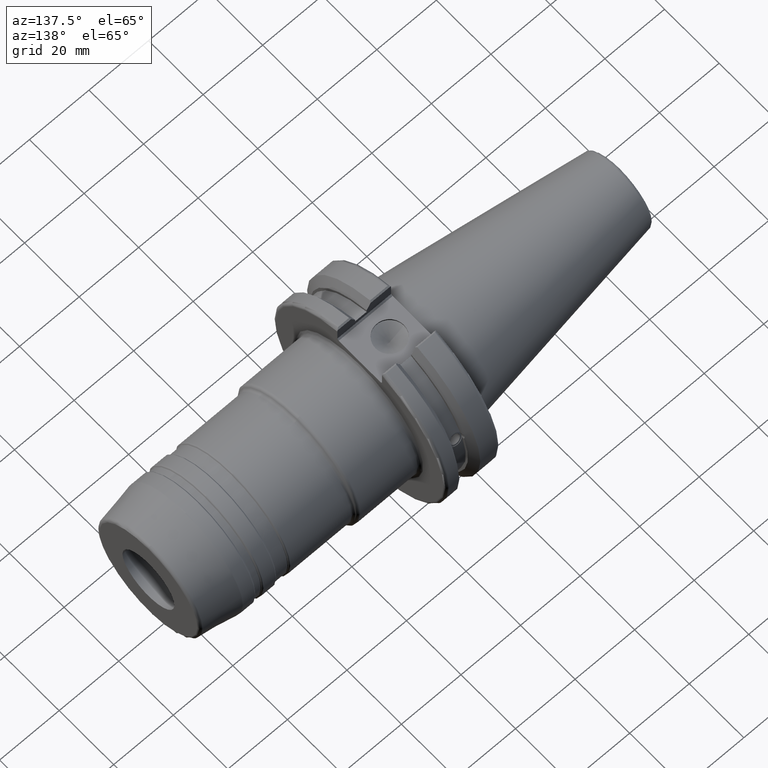
[diagram: clean part render]
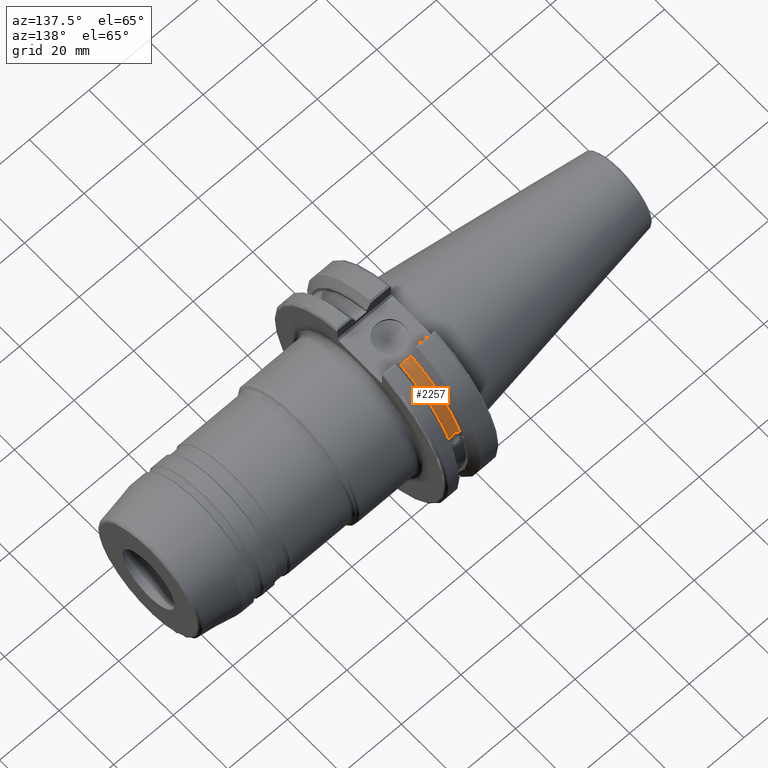
[diagram: same view with one face highlighted and labeled with its STEP entity id]
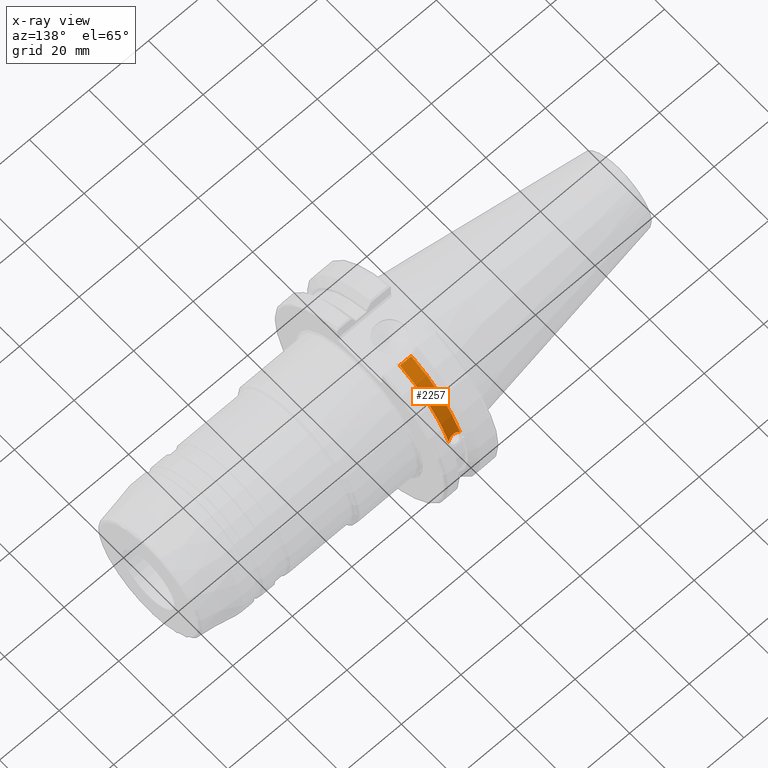
[diagram: x-ray of the same camera — body ghosted, the highlighted face saturated]
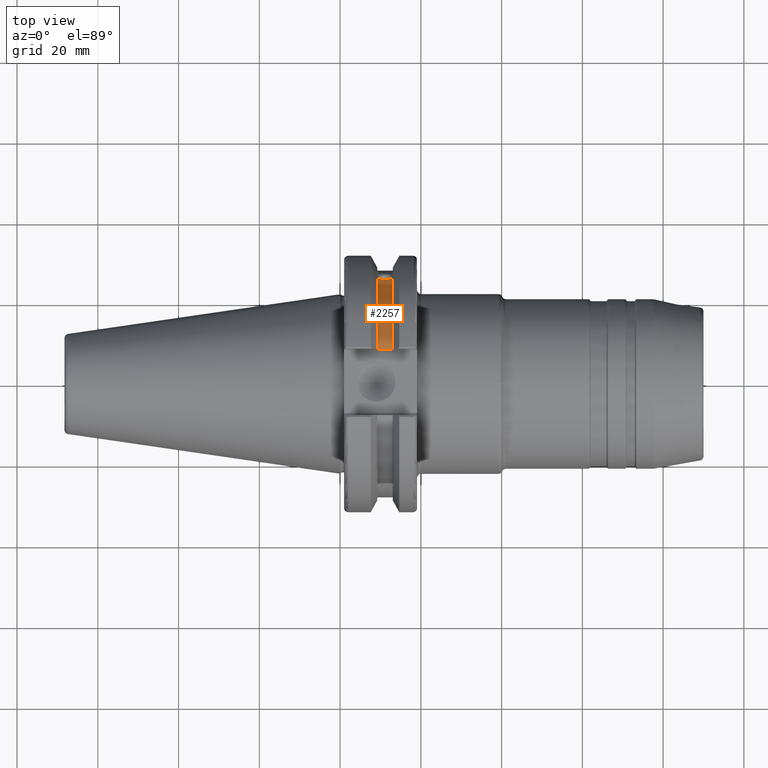
[diagram: same view with one face highlighted and labeled with its STEP entity id]
A machine part, auxiliary view. The second image highlights one B-rep face of the part: STEP entity #2257.
The next image is the same camera in x-ray: the body ghosted, the highlighted face saturated — about 0% of this face is hidden behind the body in this view.
A second angle (top view) of the same face is appended — the face is thin or edge-on in the first view.
In plain terms, the highlighted cylindrical surface (partial cylindrical patch) has radius 28.15 mm, axis along (1, 0, 0).
Its self-contained STEP definition (entity closure, byte-faithful):
#158=B_SPLINE_CURVE_WITH_KNOTS('',3,(#3946,#3947,#3948,#3949,#3950,#3951,
#3952,#3953,#3954,#3955,#3956,#3957,#3958,#3959,#3960),.UNSPECIFIED.,.F.,
 .F.,(4,2,2,3,2,2,4),(-0.231446873660084,-0.158271583089134,-0.079135791544567,
0.,0.079135791544567,0.158271583089134,0.231446873660466),.UNSPECIFIED.);
#271=FACE_OUTER_BOUND('',#393,.T.);
#393=EDGE_LOOP('',(#2051,#2052,#2053,#2054));
#503=LINE('',#4322,#608);
#608=VECTOR('',#3216,10.);
#785=CIRCLE('',#2569,28.15);
#786=CIRCLE('',#2571,28.15);
#955=VERTEX_POINT('',#3943);
#956=VERTEX_POINT('',#3945);
#1038=VERTEX_POINT('',#4319);
#1039=VERTEX_POINT('',#4321);
#1258=EDGE_CURVE('',#956,#955,#158,.T.);
#1376=EDGE_CURVE('',#1039,#1038,#503,.T.);
#1392=EDGE_CURVE('',#956,#1038,#785,.T.);
#1393=EDGE_CURVE('',#955,#1039,#786,.T.);
#2051=ORIENTED_EDGE('',*,*,#1258,.T.);
#2052=ORIENTED_EDGE('',*,*,#1393,.T.);
#2053=ORIENTED_EDGE('',*,*,#1376,.T.);
#2054=ORIENTED_EDGE('',*,*,#1392,.F.);
#2158=CYLINDRICAL_SURFACE('',#2570,28.15);
#2257=ADVANCED_FACE('',(#271),#2158,.T.);
#2569=AXIS2_PLACEMENT_3D('',#4357,#3259,#3260);
#2570=AXIS2_PLACEMENT_3D('',#4358,#3261,#3262);
#2571=AXIS2_PLACEMENT_3D('',#4359,#3263,#3264);
#3216=DIRECTION('',(1.,0.,0.));
#3259=DIRECTION('center_axis',(1.,0.,0.));
#3260=DIRECTION('ref_axis',(0.,0.,-1.));
#3261=DIRECTION('center_axis',(1.,0.,0.));
#3262=DIRECTION('ref_axis',(0.,1.,0.));
#3263=DIRECTION('center_axis',(1.,0.,0.));
#3264=DIRECTION('ref_axis',(0.,0.,-1.));
#3943=CARTESIAN_POINT('',(9.2191,26.1451788594704,10.4332220529567));
#3945=CARTESIAN_POINT('',(13.0491,26.1451788594704,10.4332220529568));
#3946=CARTESIAN_POINT('Ctrl Pts',(13.0491,26.1451788594704,10.4332220529568));
#3947=CARTESIAN_POINT('Ctrl Pts',(12.9428694290343,26.0576536126147,10.6525563316815));
#3948=CARTESIAN_POINT('Ctrl Pts',(12.791379862294,25.9751489313128,10.8509873904882));
#3949=CARTESIAN_POINT('Ctrl Pts',(12.4326293734259,25.8346412777187,11.1816210830117));
#3950=CARTESIAN_POINT('Ctrl Pts',(12.1965549887012,25.7695111693635,11.3298867884858));
#3951=CARTESIAN_POINT('Ctrl Pts',(11.6791874573612,25.6822868299377,11.5262389251846));
#3952=CARTESIAN_POINT('Ctrl Pts',(11.3978859718152,25.6603958057616,11.5743935949859));
#3953=CARTESIAN_POINT('Ctrl Pts',(11.1341,25.6603958057616,11.5743935949859));
#3954=CARTESIAN_POINT('Ctrl Pts',(10.8703140281848,25.6603958057616,11.5743935949859));
#3955=CARTESIAN_POINT('Ctrl Pts',(10.5890125426388,25.6822868299377,11.5262389251846));
#3956=CARTESIAN_POINT('Ctrl Pts',(10.0716450112988,25.7695111693635,11.3298867884858));
#3957=CARTESIAN_POINT('Ctrl Pts',(9.83557062657411,25.8346412777187,11.1816210830117));
#3958=CARTESIAN_POINT('Ctrl Pts',(9.4768201377051,25.9751489313131,10.8509873904873));
#3959=CARTESIAN_POINT('Ctrl Pts',(9.32533057097183,26.0576536126096,10.6525563316942));
#3960=CARTESIAN_POINT('Ctrl Pts',(9.2191,26.1451788594704,10.4332220529567));
#4319=CARTESIAN_POINT('',(13.0491,8.19,26.932255754021));
#4321=CARTESIAN_POINT('',(9.2191,8.19,26.932255754021));
#4322=CARTESIAN_POINT('',(11.1341,8.19,26.932255754021));
#4357=CARTESIAN_POINT('Origin',(13.0491,0.,0.));
#4358=CARTESIAN_POINT('Origin',(11.1341,0.,0.));
#4359=CARTESIAN_POINT('Origin',(9.2191,0.,0.));